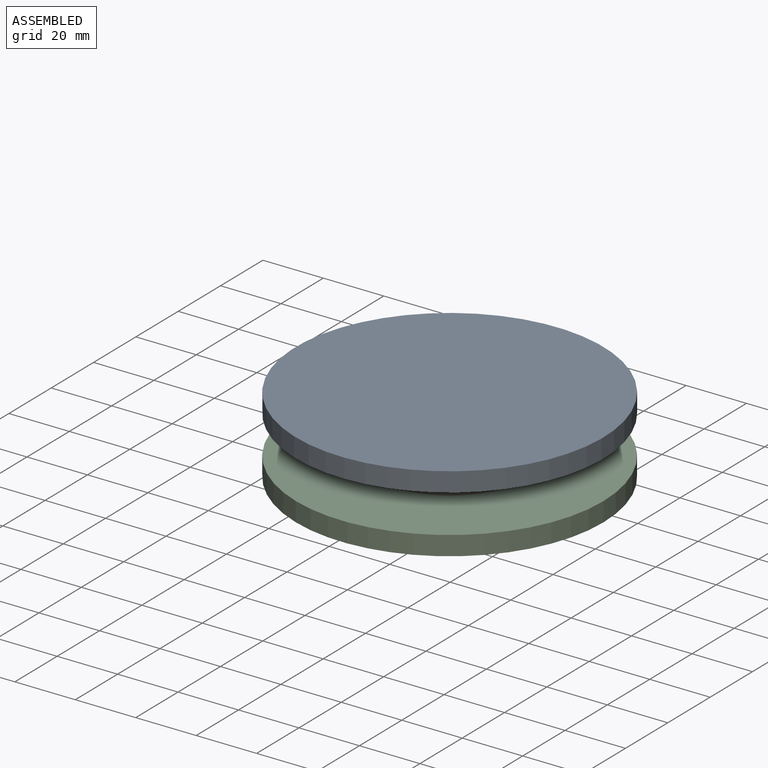
[diagram: assembled view]
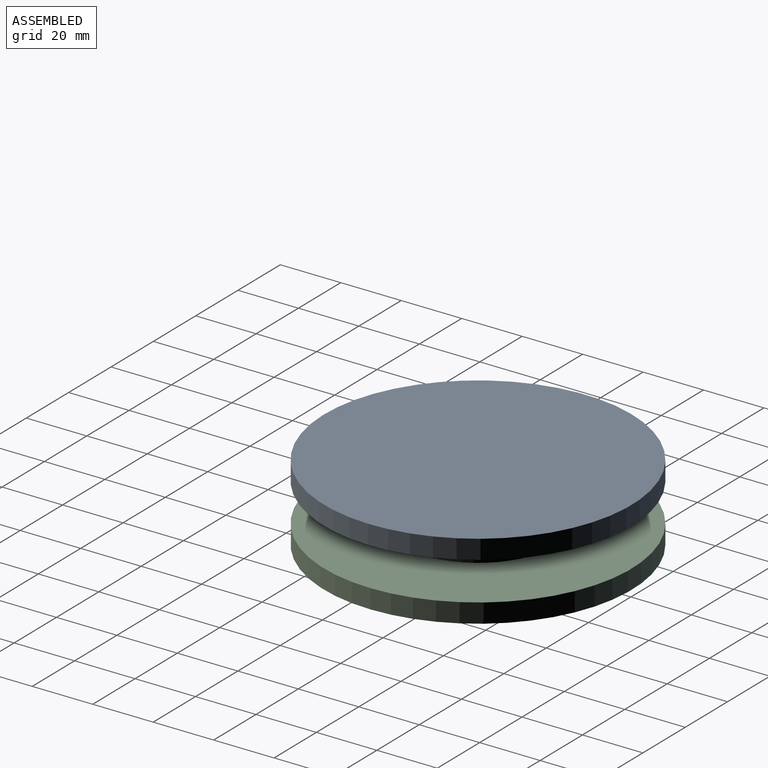
[diagram: assembled view, second angle]
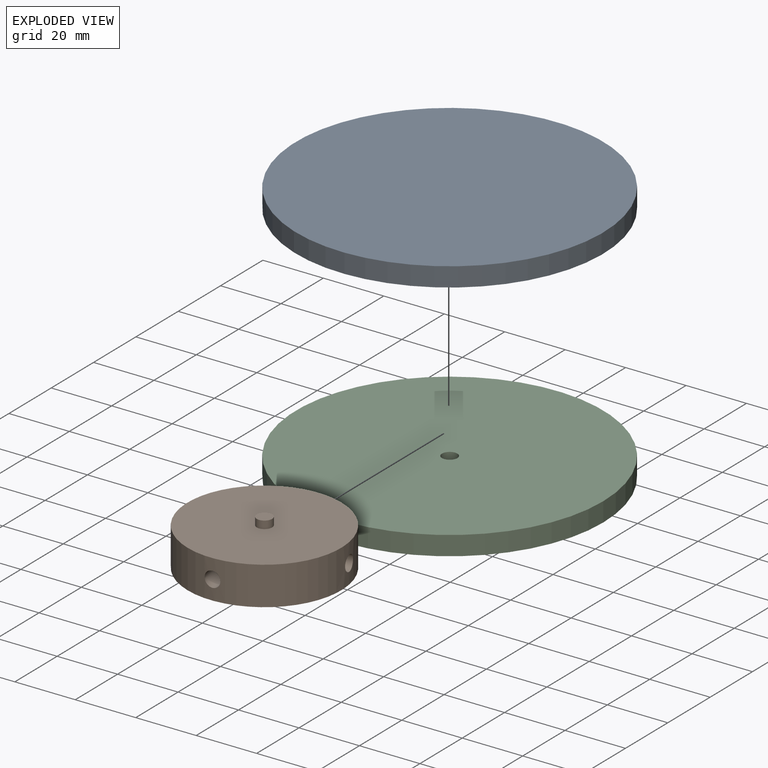
[diagram: exploded view]
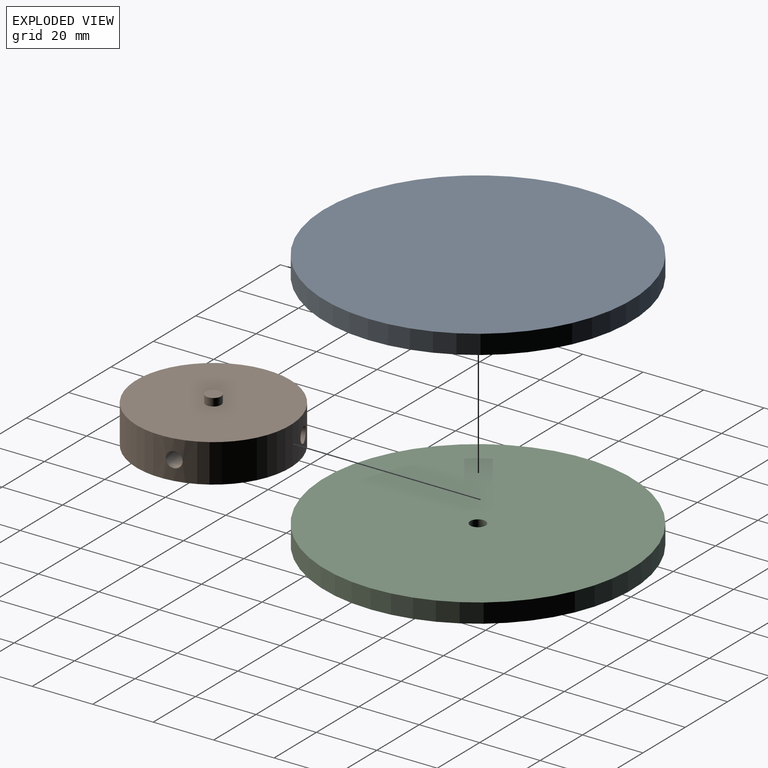
[diagram: exploded view, second angle]
ASSEMBLY  parts=3 mates=2
PART A: 5 faces, bbox 101.6x101.6x6.4 mm
  f0: cylinder r=50.8mm len=101.6mm, axis (0,0,-1), area 2026.8mm2, adj f1,f2
  f1: plane 101.6x101.6mm, normal (0,0,1), area 8107.3mm2, adj f0
  f2: plane 101.6x101.6mm, normal (0,0,-1), area 8087.1mm2, adj f0,f3
  f3: cylinder r=2.54mm len=5.08mm, axis (0,0,-1), area 40.5mm2, adj f2,f4
  f4: plane 5.08x5.08mm, normal (0,0,-1), area 20.3mm2, adj f3
PART B: 15 faces, bbox 50.8x50.8x17.8 mm
  f0: cylinder r=2.54mm len=20.28mm, axis (0,1,0), area 318.4mm2, adj f1,f9
  f1: cylinder r=25.4mm len=50.8mm, axis (0,0,-1), area 1945.1mm2, adj f0,f2,f3,f4,f5,f8
  f2: cylinder r=2.54mm len=24.24mm, axis (-1,0,0), area 385.8mm2, adj f1,f6
  f3: plane 50.8x50.8mm, normal (0,0,1), area 2006.6mm2, adj f1,f11
  f4: plane 50.8x50.8mm, normal (0,0,-1), area 2006.6mm2, adj f1,f13
  f5: cylinder r=2.54mm len=16.4mm, axis (-1,0,0), area 260.8mm2, adj f1,f7
  f6: plane 5.08x5.08mm, normal (-1,0,0), area 20.3mm2, adj f2
  f7: plane 5.08x5.08mm, normal (1,0,0), area 20.3mm2, adj f5
  f8: cylinder r=2.54mm len=20.28mm, axis (0,1,0), area 318.4mm2, adj f1,f10
  f9: plane 5.08x5.08mm, normal (0,1,0), area 20.3mm2, adj f0
  f10: plane 5.08x5.08mm, normal (0,-1,0), area 20.3mm2, adj f8
  f11: cylinder r=2.54mm len=5.08mm, axis (0,0,-1), area 40.5mm2, adj f3,f12
  f12: plane 5.08x5.08mm, normal (0,0,1), area 20.3mm2, adj f11
  f13: cylinder r=2.54mm len=5.08mm, axis (0,0,1), area 40.5mm2, adj f4,f14
  f14: plane 5.08x5.08mm, normal (0,0,-1), area 20.3mm2, adj f13
PART C: 5 faces, bbox 101.6x101.6x6.4 mm
  f0: cylinder r=50.8mm len=101.6mm, axis (0,0,-1), area 2026.8mm2, adj f1,f2
  f1: plane 101.6x101.6mm, normal (0,0,1), area 8087.1mm2, adj f0,f3
  f2: plane 101.6x101.6mm, normal (0,0,-1), area 8107.3mm2, adj f0
  f3: cylinder r=2.54mm len=5.08mm, axis (0,0,1), area 40.5mm2, adj f1,f4
  f4: plane 5.08x5.08mm, normal (0,0,1), area 20.3mm2, adj f3
PLACE A rot(axis=(0,0,-1),169.9deg) t=(92.9,-1.54,-95.22)mm
PLACE B rot(axis=(0,0,-1),169.9deg) t=(89.05,-2.22,-107.92)mm
PLACE C t=(92.9,-1.54,-114.27)mm fixed
MATE fastened B.f1 <-> A.f3  axis (0,0,1) through (92.9,-1.54,-92.68)mm
MATE revolute B.f1 <-> C.f3  axis (0,0,1) through (92.9,-1.54,-110.46)mm
